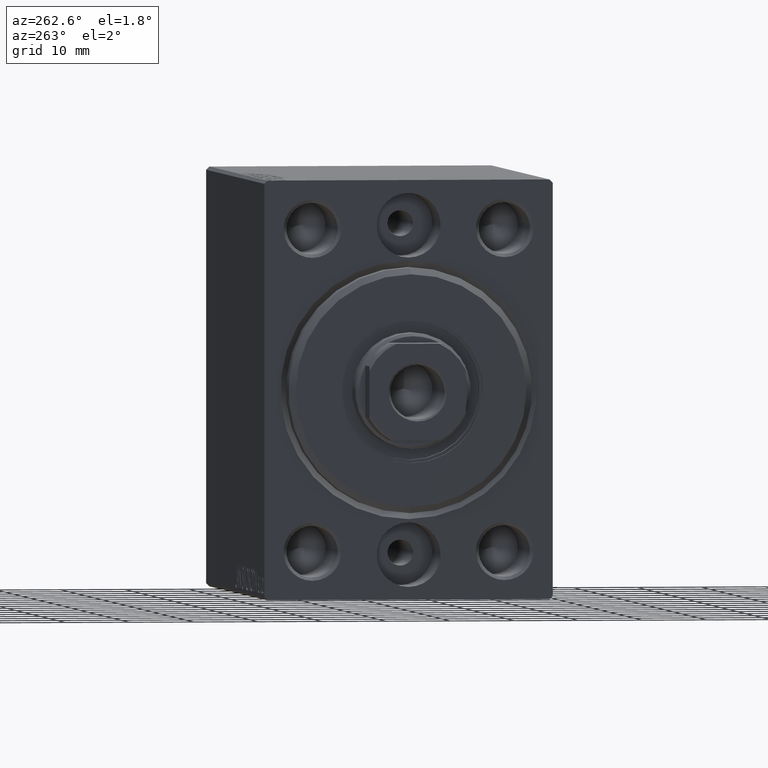
[diagram: clean part render]
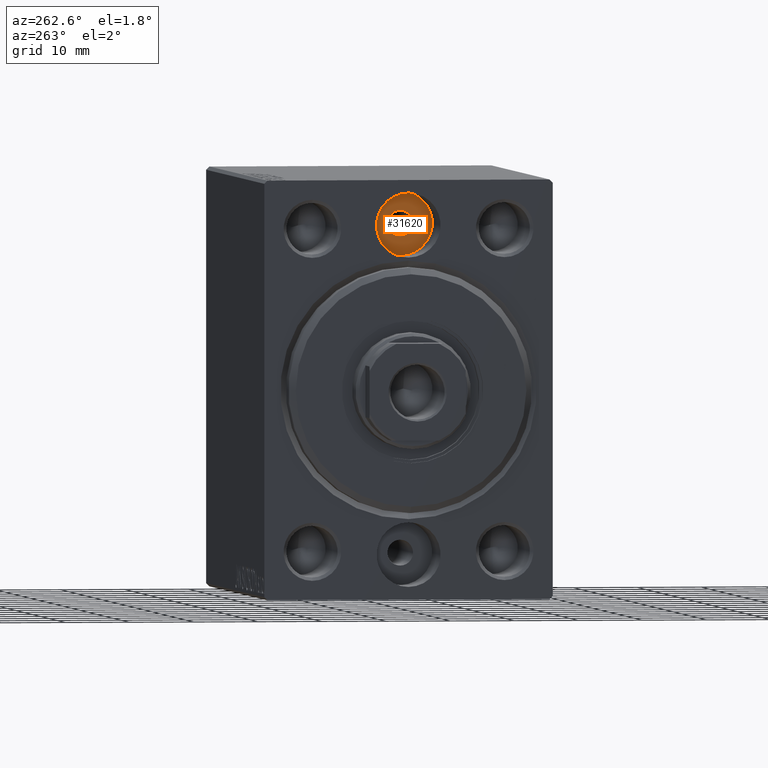
[diagram: same view with one face highlighted and labeled with its STEP entity id]
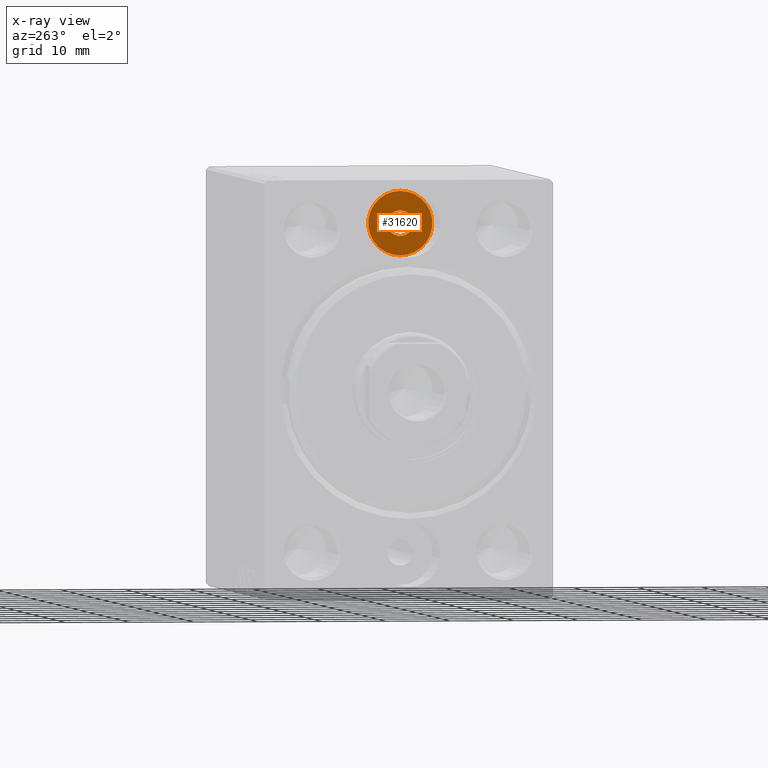
[diagram: x-ray of the same camera — body ghosted, the highlighted face saturated]
A machine part, auxiliary view. The second image highlights one B-rep face of the part: STEP entity #31620.
The next image is the same camera in x-ray: the body ghosted, the highlighted face saturated — about 0% of this face is hidden behind the body in this view.
In plain terms, the highlighted planar face has unit normal (-1, 0, 0).
Its self-contained STEP definition (entity closure, byte-faithful):
#337 = CARTESIAN_POINT ( 'NONE',  ( 10.00000000000000000, 0.000000000000000000, 25.50000000000000000 ) ) ;
#815 = DIRECTION ( 'NONE',  ( 0.000000000000000000, 0.000000000000000000, 1.000000000000000000 ) ) ;
#1129 = CARTESIAN_POINT ( 'NONE',  ( 10.00000000000000000, 0.000000000000000000, 25.50000000000000000 ) ) ;
#1538 = ORIENTED_EDGE ( 'NONE', *, *, #18344, .T. ) ;
#2196 = CIRCLE ( 'NONE', #9314, 1.999999999999998224 ) ;
#2336 = VERTEX_POINT ( 'NONE', #19579 ) ;
#2480 = AXIS2_PLACEMENT_3D ( 'NONE', #337, #24228, #24441 ) ;
#3157 = VERTEX_POINT ( 'NONE', #19426 ) ;
#3693 = CARTESIAN_POINT ( 'NONE',  ( 10.00000000000000000, 0.000000000000000000, 25.50000000000000000 ) ) ;
#3885 = EDGE_LOOP ( 'NONE', ( #26271, #11976 ) ) ;
#4284 = DIRECTION ( 'NONE',  ( 0.000000000000000000, 0.000000000000000000, 1.000000000000000000 ) ) ;
#4497 = DIRECTION ( 'NONE',  ( -1.000000000000000000, 0.000000000000000000, 0.000000000000000000 ) ) ;
#7081 = FACE_BOUND ( 'NONE', #3885, .T. ) ;
#8282 = CARTESIAN_POINT ( 'NONE',  ( 10.00000000000000000, 6.123233995736765296E-16, 20.49999999999999645 ) ) ;
#9314 = AXIS2_PLACEMENT_3D ( 'NONE', #36325, #19163, #18724 ) ;
#10263 = VERTEX_POINT ( 'NONE', #20051 ) ;
#10331 = CIRCLE ( 'NONE', #2480, 5.000000000000000888 ) ;
#10380 = AXIS2_PLACEMENT_3D ( 'NONE', #1129, #4497, #4284 ) ;
#10643 = EDGE_CURVE ( 'NONE', #19041, #2336, #10331, .T. ) ;
#11976 = ORIENTED_EDGE ( 'NONE', *, *, #28786, .F. ) ;
#12401 = EDGE_LOOP ( 'NONE', ( #1538, #17514 ) ) ;
#17294 = DIRECTION ( 'NONE',  ( 0.000000000000000000, 0.000000000000000000, 1.000000000000000000 ) ) ;
#17514 = ORIENTED_EDGE ( 'NONE', *, *, #10643, .T. ) ;
#18210 = CIRCLE ( 'NONE', #10380, 5.000000000000000888 ) ;
#18344 = EDGE_CURVE ( 'NONE', #2336, #19041, #18210, .T. ) ;
#18724 = DIRECTION ( 'NONE',  ( 0.000000000000000000, 0.000000000000000000, 1.000000000000000000 ) ) ;
#19041 = VERTEX_POINT ( 'NONE', #8282 ) ;
#19163 = DIRECTION ( 'NONE',  ( -1.000000000000000000, 0.000000000000000000, 0.000000000000000000 ) ) ;
#19426 = CARTESIAN_POINT ( 'NONE',  ( 10.00000000000000000, 2.449293598294706414E-16, 23.50000000000000000 ) ) ;
#19579 = CARTESIAN_POINT ( 'NONE',  ( 10.00000000000000000, 0.000000000000000000, 30.50000000000000000 ) ) ;
#20051 = CARTESIAN_POINT ( 'NONE',  ( 10.00000000000000000, 0.000000000000000000, 27.49999999999999645 ) ) ;
#20419 = DIRECTION ( 'NONE',  ( -1.000000000000000000, 0.000000000000000000, 0.000000000000000000 ) ) ;
#24228 = DIRECTION ( 'NONE',  ( -1.000000000000000000, 0.000000000000000000, 0.000000000000000000 ) ) ;
#24441 = DIRECTION ( 'NONE',  ( 0.000000000000000000, 0.000000000000000000, 1.000000000000000000 ) ) ;
#25479 = CIRCLE ( 'NONE', #26282, 1.999999999999998224 ) ;
#26271 = ORIENTED_EDGE ( 'NONE', *, *, #37588, .F. ) ;
#26282 = AXIS2_PLACEMENT_3D ( 'NONE', #3693, #20419, #17294 ) ;
#28786 = EDGE_CURVE ( 'NONE', #3157, #10263, #25479, .T. ) ;
#31620 = ADVANCED_FACE ( 'NONE', ( #7081, #41415 ), #34281, .T. ) ;
#34063 = DIRECTION ( 'NONE',  ( -1.000000000000000000, 0.000000000000000000, 0.000000000000000000 ) ) ;
#34281 = PLANE ( 'NONE',  #42672 ) ;
#36325 = CARTESIAN_POINT ( 'NONE',  ( 10.00000000000000000, 0.000000000000000000, 25.50000000000000000 ) ) ;
#37588 = EDGE_CURVE ( 'NONE', #10263, #3157, #2196, .T. ) ;
#41415 = FACE_OUTER_BOUND ( 'NONE', #12401, .T. ) ;
#41631 = CARTESIAN_POINT ( 'NONE',  ( 10.00000000000000000, 0.000000000000000000, 25.50000000000000000 ) ) ;
#42672 = AXIS2_PLACEMENT_3D ( 'NONE', #41631, #34063, #815 ) ;